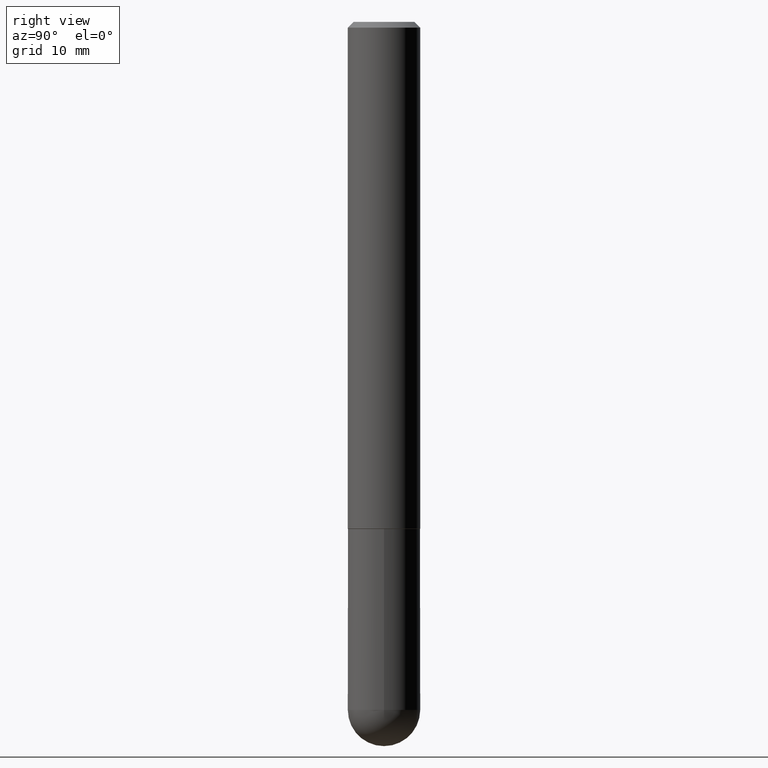
[diagram: clean part render]
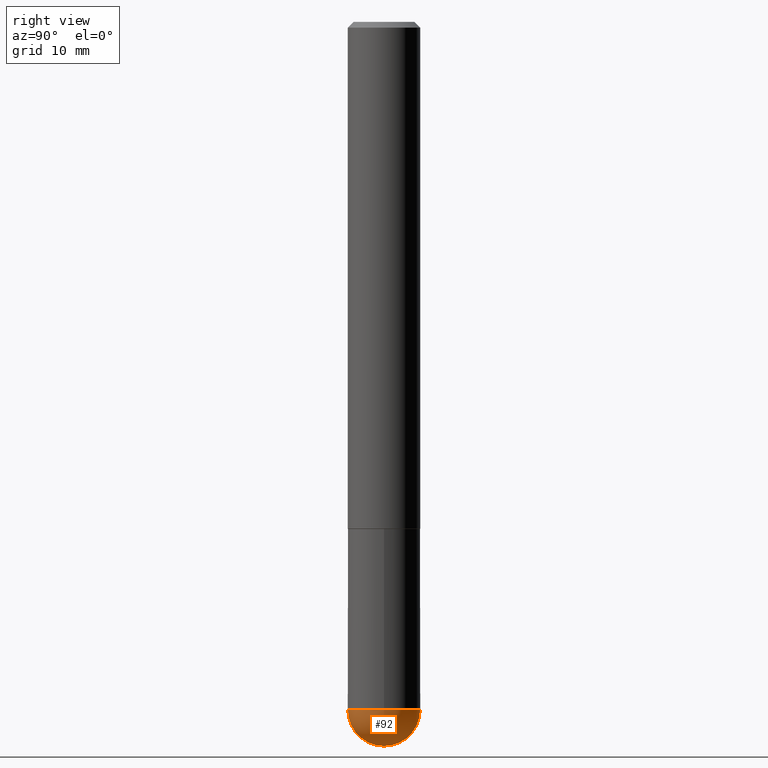
[diagram: same view with one face highlighted and labeled with its STEP entity id]
A machine part, right view. The second image highlights one B-rep face of the part: STEP entity #92.
In plain terms, the highlighted spherical surface has radius 3.175 mm.
Its self-contained STEP definition (entity closure, byte-faithful):
#24 = CARTESIAN_POINT ( 'NONE',  ( 5.807988414689700538E-29, -8.292268179752471696E-15, -2.375000000000000000 ) ) ;
#36 = AXIS2_PLACEMENT_3D ( 'NONE', #24, #248, #343 ) ;
#52 = CARTESIAN_POINT ( 'NONE',  ( 0.1250000000000000000, -8.074050596074771916E-15, -2.375000000000000000 ) ) ;
#55 = DIRECTION ( 'NONE',  ( -1.000000000000000000, 6.982962677686265922E-15, -4.883557194083112901E-29 ) ) ;
#74 = EDGE_LOOP ( 'NONE', ( #393, #133, #303, #136 ) ) ;
#77 = EDGE_CURVE ( 'NONE', #226, #198, #390, .T. ) ;
#89 = CARTESIAN_POINT ( 'NONE',  ( 5.476868636775814291E-29, -8.766450547892521992E-15, -2.375000000000000000 ) ) ;
#91 = DIRECTION ( 'NONE',  ( -7.105427357601000281E-15, -1.000000000000000000, 0.000000000000000000 ) ) ;
#92 = ADVANCED_FACE ( 'NONE', ( #120 ), #208, .T. ) ;
#116 = DIRECTION ( 'NONE',  ( 6.982962677686265133E-15, 1.000000000000000000, 0.000000000000000000 ) ) ;
#117 = CIRCLE ( 'NONE', #347, 0.1250000000000000000 ) ;
#118 = EDGE_CURVE ( 'NONE', #231, #226, #370, .T. ) ;
#120 = FACE_OUTER_BOUND ( 'NONE', #74, .T. ) ;
#129 = CARTESIAN_POINT ( 'NONE',  ( -8.881784197000694204E-16, -0.1250000000000086320, -2.374999999999999556 ) ) ;
#133 = ORIENTED_EDGE ( 'NONE', *, *, #206, .T. ) ;
#136 = ORIENTED_EDGE ( 'NONE', *, *, #77, .F. ) ;
#151 = CARTESIAN_POINT ( 'NONE',  ( 5.807988414689700538E-29, -8.292268179752471696E-15, -2.375000000000000000 ) ) ;
#182 = CARTESIAN_POINT ( 'NONE',  ( 5.476868636775814291E-29, -8.766450547892521992E-15, -2.375000000000000000 ) ) ;
#192 = CIRCLE ( 'NONE', #377, 0.1250000000000001943 ) ;
#198 = VERTEX_POINT ( 'NONE', #52 ) ;
#206 = EDGE_CURVE ( 'NONE', #231, #391, #192, .T. ) ;
#208 = SPHERICAL_SURFACE ( 'NONE', #314, 0.1250000000000001943 ) ;
#219 = DIRECTION ( 'NONE',  ( -2.445468806185136597E-29, 3.491481338843145583E-15, 1.000000000000000000 ) ) ;
#220 = AXIS2_PLACEMENT_3D ( 'NONE', #89, #239, #91 ) ;
#226 = VERTEX_POINT ( 'NONE', #129 ) ;
#228 = CARTESIAN_POINT ( 'NONE',  ( 8.728703347108403340E-16, 0.1249999999999915623, -2.375000000000000888 ) ) ;
#231 = VERTEX_POINT ( 'NONE', #320 ) ;
#239 = DIRECTION ( 'NONE',  ( -1.000000000000000000, 7.105427357601001070E-15, -4.926315508542082329E-29 ) ) ;
#248 = DIRECTION ( 'NONE',  ( -2.445468806185136597E-29, 3.491481338843145583E-15, 1.000000000000000000 ) ) ;
#287 = DIRECTION ( 'NONE',  ( 1.000000000000000000, -6.982962677686270655E-15, 0.000000000000000000 ) ) ;
#303 = ORIENTED_EDGE ( 'NONE', *, *, #324, .F. ) ;
#313 = DIRECTION ( 'NONE',  ( 1.000000000000000000, -6.982962677686265922E-15, 4.883557194083112340E-29 ) ) ;
#314 = AXIS2_PLACEMENT_3D ( 'NONE', #406, #55, #341 ) ;
#320 = CARTESIAN_POINT ( 'NONE',  ( 5.787897026856327965E-29, -9.195231672753244292E-15, -2.500000000000000444 ) ) ;
#324 = EDGE_CURVE ( 'NONE', #198, #391, #117, .T. ) ;
#341 = DIRECTION ( 'NONE',  ( 6.982962677686265922E-15, 1.000000000000000000, -4.370956789862814839E-15 ) ) ;
#343 = DIRECTION ( 'NONE',  ( 1.000000000000000000, -6.982962677686270655E-15, 0.000000000000000000 ) ) ;
#347 = AXIS2_PLACEMENT_3D ( 'NONE', #151, #219, #287 ) ;
#370 = CIRCLE ( 'NONE', #220, 0.1250000000000001943 ) ;
#377 = AXIS2_PLACEMENT_3D ( 'NONE', #182, #313, #116 ) ;
#390 = CIRCLE ( 'NONE', #36, 0.1250000000000000000 ) ;
#391 = VERTEX_POINT ( 'NONE', #228 ) ;
#393 = ORIENTED_EDGE ( 'NONE', *, *, #118, .F. ) ;
#406 = CARTESIAN_POINT ( 'NONE',  ( 5.476868636775814291E-29, -8.766450547892521992E-15, -2.375000000000000000 ) ) ;